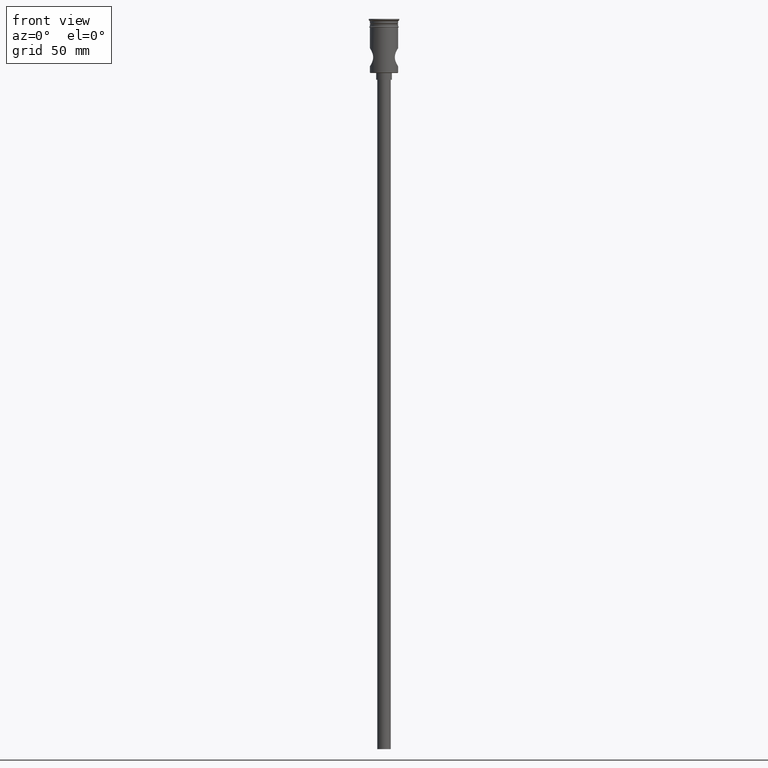
[diagram: clean part render]
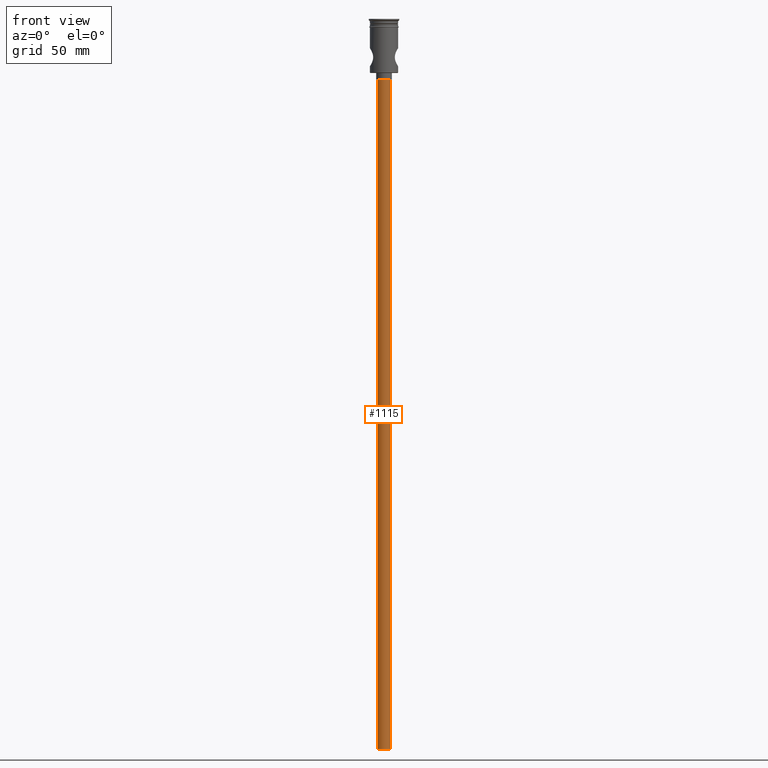
[diagram: same view with one face highlighted and labeled with its STEP entity id]
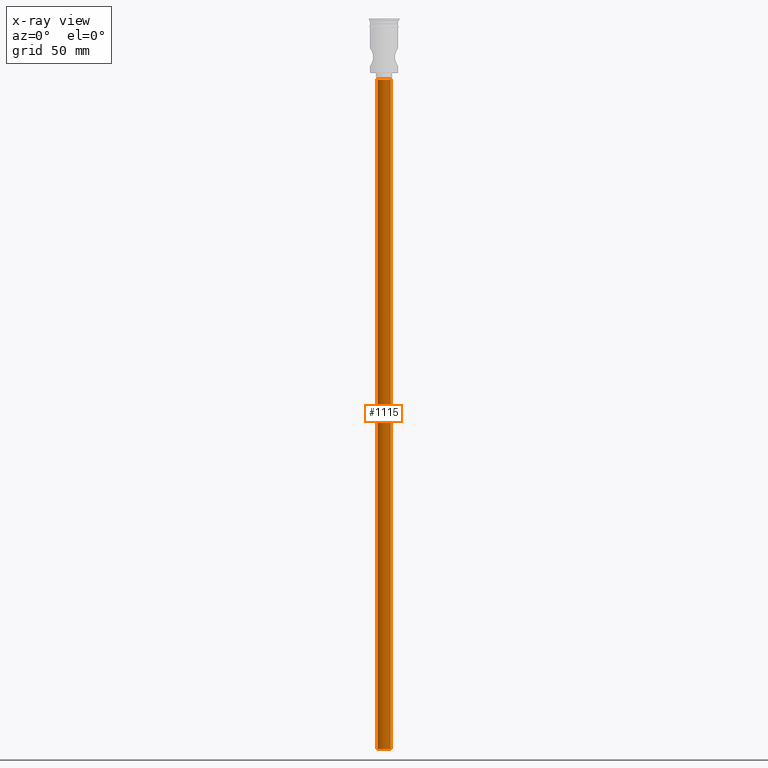
[diagram: x-ray of the same camera — body ghosted, the highlighted face saturated]
A machine part, front view. The second image highlights one B-rep face of the part: STEP entity #1115.
The next image is the same camera in x-ray: the body ghosted, the highlighted face saturated — about 0% of this face is hidden behind the body in this view.
In plain terms, the highlighted cylindrical surface (edge-blend (fillet) strip) has radius 3 mm, axis along (-0, -0, 1).
Its self-contained STEP definition (entity closure, byte-faithful):
#20 = VECTOR ( 'NONE', #845, 1000.000000000000000 ) ;
#106 = CARTESIAN_POINT ( 'NONE',  ( -3.000000000000000444, 3.673940397442060361E-16, -27.00000000000000000 ) ) ;
#136 = CARTESIAN_POINT ( 'NONE',  ( 0.000000000000000000, 0.000000000000000000, -324.0000000000000000 ) ) ;
#160 = DIRECTION ( 'NONE',  ( 1.000000000000000000, 0.000000000000000000, 0.000000000000000000 ) ) ;
#166 = CIRCLE ( 'NONE', #668, 3.000000000000000444 ) ;
#168 = AXIS2_PLACEMENT_3D ( 'NONE', #136, #722, #504 ) ;
#189 = AXIS2_PLACEMENT_3D ( 'NONE', #1392, #268, #160 ) ;
#268 = DIRECTION ( 'NONE',  ( -0.000000000000000000, -0.000000000000000000, 1.000000000000000000 ) ) ;
#289 = CARTESIAN_POINT ( 'NONE',  ( 3.000000000000000444, 0.000000000000000000, -27.00000000000000000 ) ) ;
#347 = LINE ( 'NONE', #427, #424 ) ;
#405 = DIRECTION ( 'NONE',  ( 0.000000000000000000, 0.000000000000000000, -1.000000000000000000 ) ) ;
#416 = ORIENTED_EDGE ( 'NONE', *, *, #455, .F. ) ;
#424 = VECTOR ( 'NONE', #695, 1000.000000000000000 ) ;
#427 = CARTESIAN_POINT ( 'NONE',  ( 3.000000000000000444, 0.000000000000000000, -324.0000000000000000 ) ) ;
#455 = EDGE_CURVE ( 'NONE', #1020, #984, #1301, .T. ) ;
#493 = EDGE_CURVE ( 'NONE', #663, #1020, #665, .T. ) ;
#504 = DIRECTION ( 'NONE',  ( -1.000000000000000000, 0.000000000000000000, 0.000000000000000000 ) ) ;
#651 = ORIENTED_EDGE ( 'NONE', *, *, #493, .F. ) ;
#663 = VERTEX_POINT ( 'NONE', #1216 ) ;
#665 = CIRCLE ( 'NONE', #168, 3.000000000000000444 ) ;
#668 = AXIS2_PLACEMENT_3D ( 'NONE', #1191, #405, #859 ) ;
#695 = DIRECTION ( 'NONE',  ( -0.000000000000000000, -0.000000000000000000, 1.000000000000000000 ) ) ;
#715 = FACE_OUTER_BOUND ( 'NONE', #1432, .T. ) ;
#721 = ORIENTED_EDGE ( 'NONE', *, *, #1044, .T. ) ;
#722 = DIRECTION ( 'NONE',  ( 0.000000000000000000, 0.000000000000000000, -1.000000000000000000 ) ) ;
#759 = ORIENTED_EDGE ( 'NONE', *, *, #1128, .T. ) ;
#827 = CARTESIAN_POINT ( 'NONE',  ( -3.000000000000000444, 3.673940397442060361E-16, -324.0000000000000000 ) ) ;
#836 = VERTEX_POINT ( 'NONE', #289 ) ;
#845 = DIRECTION ( 'NONE',  ( -0.000000000000000000, -0.000000000000000000, 1.000000000000000000 ) ) ;
#859 = DIRECTION ( 'NONE',  ( -1.000000000000000000, 0.000000000000000000, 0.000000000000000000 ) ) ;
#984 = VERTEX_POINT ( 'NONE', #106 ) ;
#1020 = VERTEX_POINT ( 'NONE', #1345 ) ;
#1044 = EDGE_CURVE ( 'NONE', #663, #836, #347, .T. ) ;
#1115 = ADVANCED_FACE ( 'NONE', ( #715 ), #1161, .T. ) ;
#1128 = EDGE_CURVE ( 'NONE', #836, #984, #166, .T. ) ;
#1161 = CYLINDRICAL_SURFACE ( 'NONE', #189, 3.000000000000000444 ) ;
#1191 = CARTESIAN_POINT ( 'NONE',  ( 0.000000000000000000, 0.000000000000000000, -27.00000000000000000 ) ) ;
#1216 = CARTESIAN_POINT ( 'NONE',  ( 3.000000000000000444, 0.000000000000000000, -324.0000000000000000 ) ) ;
#1301 = LINE ( 'NONE', #827, #20 ) ;
#1345 = CARTESIAN_POINT ( 'NONE',  ( -3.000000000000000444, 3.673940397442060361E-16, -324.0000000000000000 ) ) ;
#1392 = CARTESIAN_POINT ( 'NONE',  ( 0.000000000000000000, 0.000000000000000000, -324.0000000000000000 ) ) ;
#1432 = EDGE_LOOP ( 'NONE', ( #416, #651, #721, #759 ) ) ;